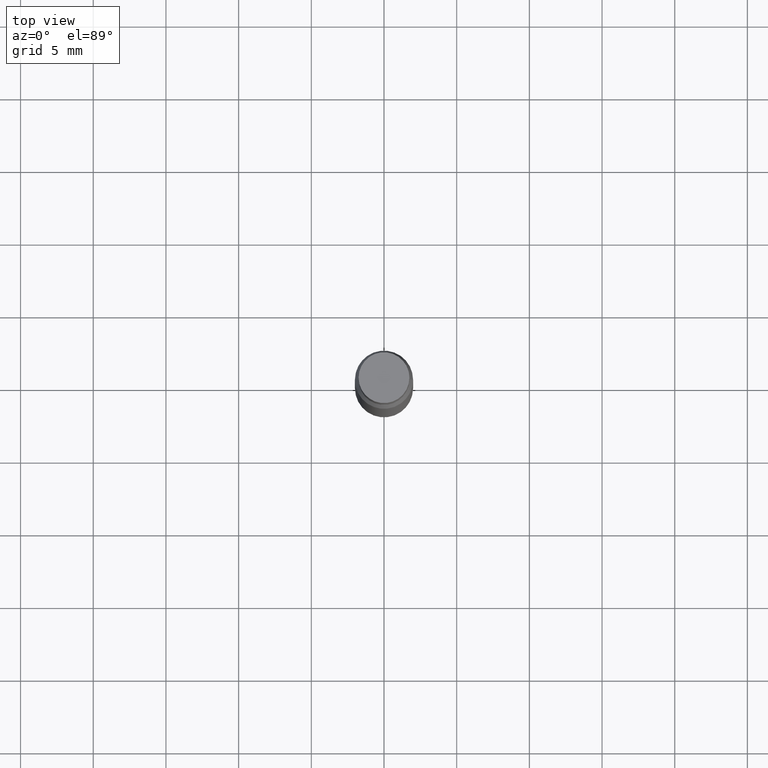
[diagram: clean part render]
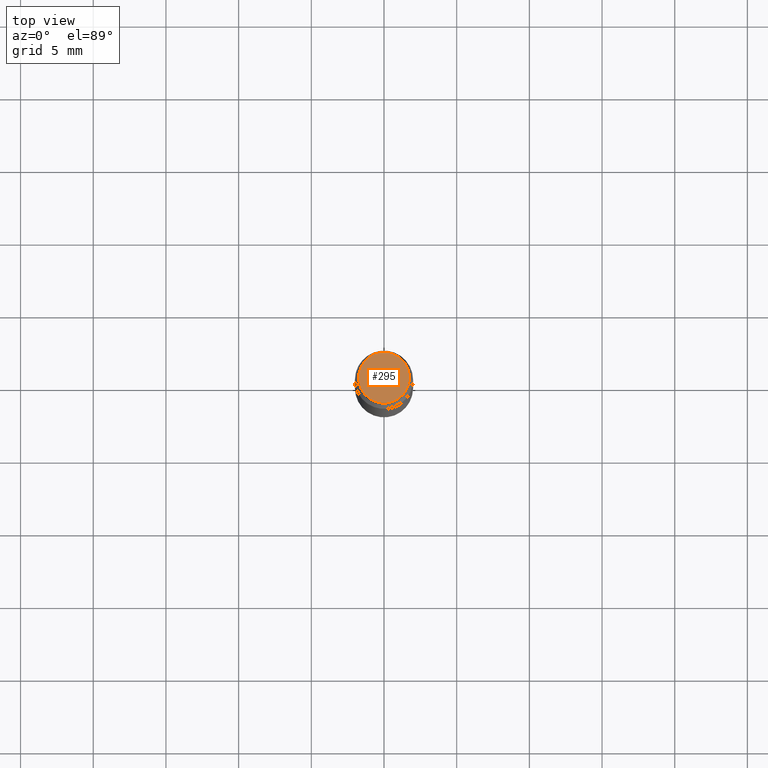
[diagram: same view with one face highlighted and labeled with its STEP entity id]
A machine part, top view. The second image highlights one B-rep face of the part: STEP entity #295.
In plain terms, the highlighted planar face has unit normal (-0, -0, -1).
Its self-contained STEP definition (entity closure, byte-faithful):
#155 = DIRECTION ( 'NONE',  ( 1.000000000000000000, -6.982962677686265922E-15, 0.000000000000000000 ) ) ;
#194 = EDGE_CURVE ( 'NONE', #222, #275, #962, .T. ) ;
#222 = VERTEX_POINT ( 'NONE', #744 ) ;
#231 = CARTESIAN_POINT ( 'NONE',  ( 4.813905344975441835E-29, 3.186569591213228268E-19, 2.731847993664263218E-16 ) ) ;
#250 = AXIS2_PLACEMENT_3D ( 'NONE', #325, #543, #691 ) ;
#275 = VERTEX_POINT ( 'NONE', #595 ) ;
#295 = ADVANCED_FACE ( 'NONE', ( #612 ), #403, .F. ) ;
#314 = DIRECTION ( 'NONE',  ( 1.000000000000000000, -6.982962677686265922E-15, 0.000000000000000000 ) ) ;
#325 = CARTESIAN_POINT ( 'NONE',  ( 4.854693202492024183E-29, 5.872919042354616743E-17, 2.731847993664263218E-16 ) ) ;
#339 = ORIENTED_EDGE ( 'NONE', *, *, #194, .T. ) ;
#369 = EDGE_LOOP ( 'NONE', ( #339, #746 ) ) ;
#381 = EDGE_CURVE ( 'NONE', #275, #222, #893, .T. ) ;
#403 = PLANE ( 'NONE',  #250 ) ;
#543 = DIRECTION ( 'NONE',  ( -2.438088387897959208E-29, -3.491805094961123683E-15, -1.000000000000000000 ) ) ;
#595 = CARTESIAN_POINT ( 'NONE',  ( -0.06890000000000007230, -8.163773080062677072E-18, 2.731847993664279982E-16 ) ) ;
#612 = FACE_OUTER_BOUND ( 'NONE', #369, .T. ) ;
#619 = AXIS2_PLACEMENT_3D ( 'NONE', #884, #731, #155 ) ;
#682 = DIRECTION ( 'NONE',  ( 2.445468806185136597E-29, 3.491805094961124077E-15, 1.000000000000000000 ) ) ;
#691 = DIRECTION ( 'NONE',  ( 1.000000000000000000, -6.982962677686265922E-15, 2.260776888683160832E-33 ) ) ;
#702 = AXIS2_PLACEMENT_3D ( 'NONE', #231, #682, #314 ) ;
#731 = DIRECTION ( 'NONE',  ( 2.445468806185136597E-29, 3.491805094961124077E-15, 1.000000000000000000 ) ) ;
#744 = CARTESIAN_POINT ( 'NONE',  ( 0.06890000000000007230, -4.808074715334629460E-16, 2.731847993664263218E-16 ) ) ;
#746 = ORIENTED_EDGE ( 'NONE', *, *, #381, .T. ) ;
#884 = CARTESIAN_POINT ( 'NONE',  ( 4.813905344975441835E-29, 3.186569591213228268E-19, 2.731847993664263218E-16 ) ) ;
#893 = CIRCLE ( 'NONE', #702, 0.06890000000000007230 ) ;
#962 = CIRCLE ( 'NONE', #619, 0.06890000000000007230 ) ;